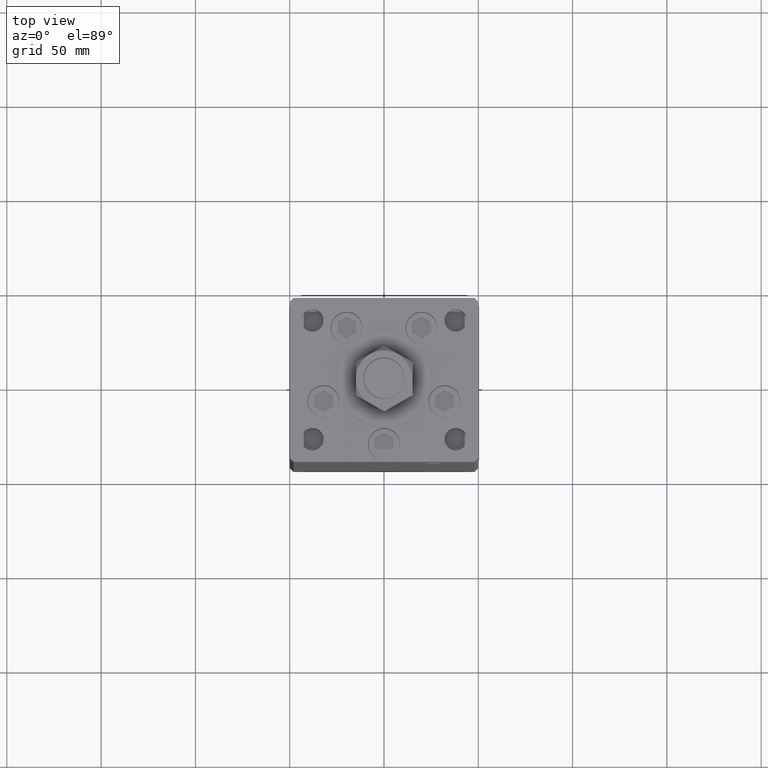
[diagram: clean part render]
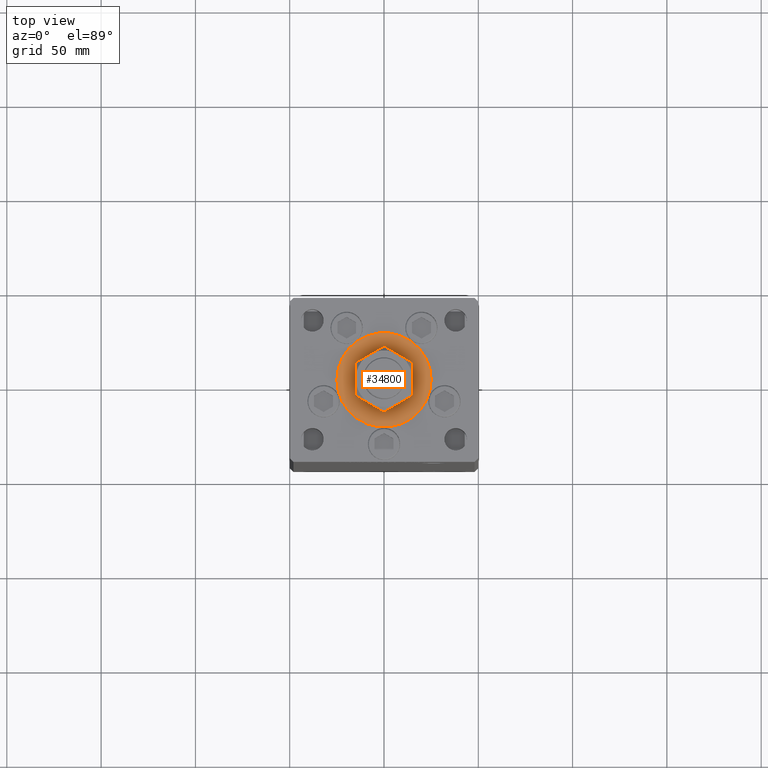
[diagram: same view with one face highlighted and labeled with its STEP entity id]
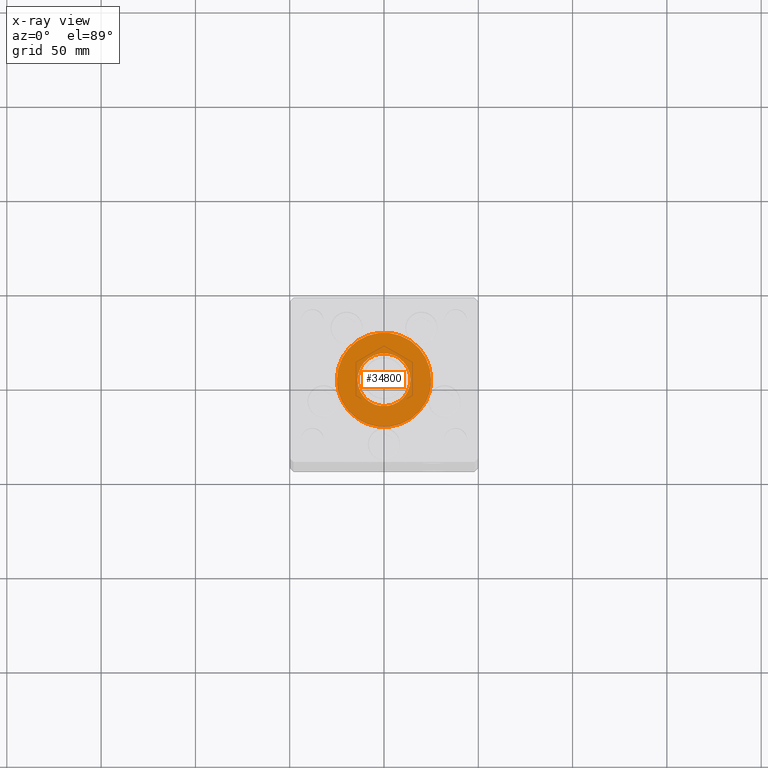
[diagram: x-ray of the same camera — body ghosted, the highlighted face saturated]
A machine part, top view. The second image highlights one B-rep face of the part: STEP entity #34800.
The next image is the same camera in x-ray: the body ghosted, the highlighted face saturated — about 0% of this face is hidden behind the body in this view.
In plain terms, the highlighted planar face has unit normal (0, 0, 1).
Its self-contained STEP definition (entity closure, byte-faithful):
#1748 = VERTEX_POINT ( 'NONE', #22781 ) ;
#2212 = CIRCLE ( 'NONE', #11766, 14.00000000000000000 ) ;
#2898 = DIRECTION ( 'NONE',  ( 0.000000000000000000, 0.000000000000000000, 1.000000000000000000 ) ) ;
#5954 = DIRECTION ( 'NONE',  ( 1.000000000000000000, 0.000000000000000000, 0.000000000000000000 ) ) ;
#6710 = FACE_BOUND ( 'NONE', #18563, .T. ) ;
#8439 = CIRCLE ( 'NONE', #31060, 14.00000000000000000 ) ;
#9861 = EDGE_LOOP ( 'NONE', ( #13657, #32137 ) ) ;
#9862 = CARTESIAN_POINT ( 'NONE',  ( 25.00000000000000000, -3.877276906038844941E-15, 2.000000000000000000 ) ) ;
#10476 = CARTESIAN_POINT ( 'NONE',  ( 0.000000000000000000, -6.938893903907228378E-15, 2.000000000000000000 ) ) ;
#10814 = CARTESIAN_POINT ( 'NONE',  ( 0.000000000000000000, -6.938893903907228378E-15, 2.000000000000000000 ) ) ;
#11766 = AXIS2_PLACEMENT_3D ( 'NONE', #43107, #19647, #15292 ) ;
#12910 = VERTEX_POINT ( 'NONE', #23812 ) ;
#13366 = EDGE_CURVE ( 'NONE', #12910, #1748, #8439, .T. ) ;
#13657 = ORIENTED_EDGE ( 'NONE', *, *, #20262, .T. ) ;
#15292 = DIRECTION ( 'NONE',  ( 1.000000000000000000, 0.000000000000000000, 0.000000000000000000 ) ) ;
#15956 = CIRCLE ( 'NONE', #29854, 25.00000000000000000 ) ;
#18563 = EDGE_LOOP ( 'NONE', ( #46700, #38488 ) ) ;
#18622 = DIRECTION ( 'NONE',  ( 1.000000000000000000, 0.000000000000000000, 0.000000000000000000 ) ) ;
#19035 = AXIS2_PLACEMENT_3D ( 'NONE', #10476, #27060, #18622 ) ;
#19647 = DIRECTION ( 'NONE',  ( 0.000000000000000000, 0.000000000000000000, 1.000000000000000000 ) ) ;
#19748 = VERTEX_POINT ( 'NONE', #39498 ) ;
#20262 = EDGE_CURVE ( 'NONE', #19748, #35301, #15956, .T. ) ;
#20780 = AXIS2_PLACEMENT_3D ( 'NONE', #48398, #2898, #22759 ) ;
#22759 = DIRECTION ( 'NONE',  ( 1.000000000000000000, 0.000000000000000000, -0.000000000000000000 ) ) ;
#22781 = CARTESIAN_POINT ( 'NONE',  ( -14.00000000000000000, -5.224388385100933937E-15, 2.000000000000000000 ) ) ;
#23797 = EDGE_CURVE ( 'NONE', #1748, #12910, #2212, .T. ) ;
#23812 = CARTESIAN_POINT ( 'NONE',  ( 14.00000000000000000, -6.938893903907228378E-15, 2.000000000000000000 ) ) ;
#27060 = DIRECTION ( 'NONE',  ( 0.000000000000000000, 0.000000000000000000, 1.000000000000000000 ) ) ;
#29854 = AXIS2_PLACEMENT_3D ( 'NONE', #10814, #47067, #38870 ) ;
#31060 = AXIS2_PLACEMENT_3D ( 'NONE', #51717, #52266, #5954 ) ;
#32137 = ORIENTED_EDGE ( 'NONE', *, *, #35080, .T. ) ;
#34800 = ADVANCED_FACE ( 'NONE', ( #6710, #48126 ), #35308, .T. ) ;
#35080 = EDGE_CURVE ( 'NONE', #35301, #19748, #42520, .T. ) ;
#35301 = VERTEX_POINT ( 'NONE', #9862 ) ;
#35308 = PLANE ( 'NONE',  #20780 ) ;
#38488 = ORIENTED_EDGE ( 'NONE', *, *, #23797, .F. ) ;
#38870 = DIRECTION ( 'NONE',  ( 1.000000000000000000, 0.000000000000000000, 0.000000000000000000 ) ) ;
#39498 = CARTESIAN_POINT ( 'NONE',  ( -25.00000000000000000, -6.938893903907228378E-15, 2.000000000000000000 ) ) ;
#42520 = CIRCLE ( 'NONE', #19035, 25.00000000000000000 ) ;
#43107 = CARTESIAN_POINT ( 'NONE',  ( 0.000000000000000000, -6.938893903907228378E-15, 2.000000000000000000 ) ) ;
#46700 = ORIENTED_EDGE ( 'NONE', *, *, #13366, .F. ) ;
#47067 = DIRECTION ( 'NONE',  ( 0.000000000000000000, 0.000000000000000000, 1.000000000000000000 ) ) ;
#48126 = FACE_OUTER_BOUND ( 'NONE', #9861, .T. ) ;
#48398 = CARTESIAN_POINT ( 'NONE',  ( 0.000000000000000000, -6.938893903907228378E-15, 2.000000000000000000 ) ) ;
#51717 = CARTESIAN_POINT ( 'NONE',  ( 0.000000000000000000, -6.938893903907228378E-15, 2.000000000000000000 ) ) ;
#52266 = DIRECTION ( 'NONE',  ( 0.000000000000000000, 0.000000000000000000, 1.000000000000000000 ) ) ;